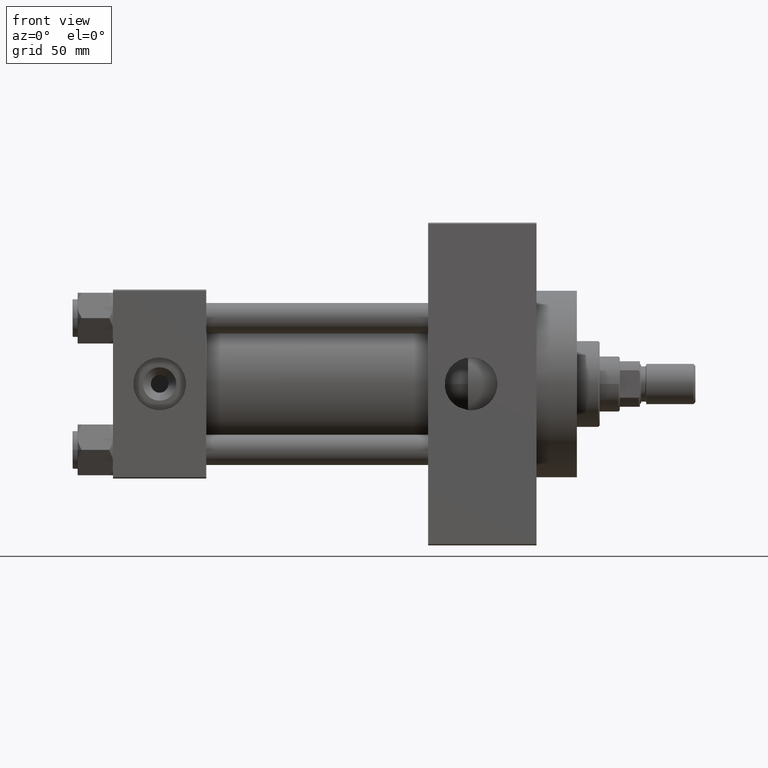
[diagram: clean part render]
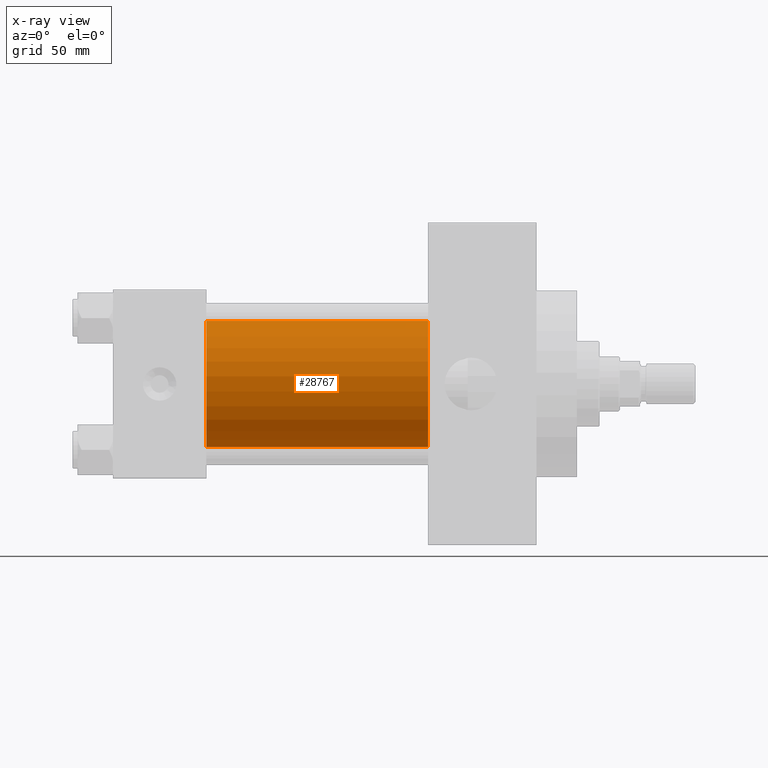
[diagram: x-ray — body ghosted, one internal face saturated and labeled with its STEP entity id]
A machine part, front view, then the same camera in x-ray: the body is ghosted and one INTERNAL B-rep face — a face not visible from any outside direction — is saturated and labeled: STEP entity #28767.
In plain terms, the highlighted cylindrical surface (partial cylindrical patch) has radius 25 mm, axis along (-1, -0, -0).
Its self-contained STEP definition (entity closure, byte-faithful):
#444 = AXIS2_PLACEMENT_3D ( 'NONE', #13456, #1597, #5875 ) ;
#775 = VERTEX_POINT ( 'NONE', #23374 ) ;
#824 = DIRECTION ( 'NONE',  ( -1.000000000000000000, -0.000000000000000000, -0.000000000000000000 ) ) ;
#1597 = DIRECTION ( 'NONE',  ( 1.000000000000000000, 0.000000000000000000, 0.000000000000000000 ) ) ;
#2289 = VECTOR ( 'NONE', #47119, 1000.000000000000000 ) ;
#4102 = CARTESIAN_POINT ( 'NONE',  ( 125.0000000000000000, 4.595317839031724996E-16, -25.00000000000000000 ) ) ;
#4330 = ORIENTED_EDGE ( 'NONE', *, *, #37164, .T. ) ;
#4348 = LINE ( 'NONE', #4102, #42304 ) ;
#5117 = AXIS2_PLACEMENT_3D ( 'NONE', #43704, #9334, #24484 ) ;
#5224 = CARTESIAN_POINT ( 'NONE',  ( 125.0000000000000000, 4.595317839031724996E-16, -25.00000000000000000 ) ) ;
#5875 = DIRECTION ( 'NONE',  ( 0.000000000000000000, 0.000000000000000000, -1.000000000000000000 ) ) ;
#6088 = ORIENTED_EDGE ( 'NONE', *, *, #48730, .F. ) ;
#7903 = VERTEX_POINT ( 'NONE', #40362 ) ;
#9334 = DIRECTION ( 'NONE',  ( 1.000000000000000000, 0.000000000000000000, 0.000000000000000000 ) ) ;
#13456 = CARTESIAN_POINT ( 'NONE',  ( 125.0000000000000000, -2.602085213965210642E-15, 0.000000000000000000 ) ) ;
#15656 = DIRECTION ( 'NONE',  ( -1.000000000000000000, -0.000000000000000000, -0.000000000000000000 ) ) ;
#18186 = CIRCLE ( 'NONE', #444, 25.00000000000000000 ) ;
#19052 = ORIENTED_EDGE ( 'NONE', *, *, #48229, .T. ) ;
#20375 = EDGE_CURVE ( 'NONE', #28306, #775, #32177, .T. ) ;
#23374 = CARTESIAN_POINT ( 'NONE',  ( 37.00000000000000000, -2.602085213965210642E-15, 25.00000000000000000 ) ) ;
#23642 = CIRCLE ( 'NONE', #5117, 25.00000000000000000 ) ;
#23802 = ORIENTED_EDGE ( 'NONE', *, *, #20375, .F. ) ;
#24004 = DIRECTION ( 'NONE',  ( 0.000000000000000000, 0.000000000000000000, 1.000000000000000000 ) ) ;
#24484 = DIRECTION ( 'NONE',  ( 0.000000000000000000, 0.000000000000000000, -1.000000000000000000 ) ) ;
#27115 = CARTESIAN_POINT ( 'NONE',  ( 125.0000000000000000, -2.602085213965210642E-15, 25.00000000000000000 ) ) ;
#28306 = VERTEX_POINT ( 'NONE', #27115 ) ;
#28767 = ADVANCED_FACE ( 'NONE', ( #43222 ), #35373, .F. ) ;
#32177 = LINE ( 'NONE', #47616, #2289 ) ;
#35373 = CYLINDRICAL_SURFACE ( 'NONE', #47610, 25.00000000000000000 ) ;
#37164 = EDGE_CURVE ( 'NONE', #28306, #39550, #18186, .T. ) ;
#39550 = VERTEX_POINT ( 'NONE', #5224 ) ;
#40362 = CARTESIAN_POINT ( 'NONE',  ( 37.00000000000000000, 4.595317839031724996E-16, -25.00000000000000000 ) ) ;
#42304 = VECTOR ( 'NONE', #824, 1000.000000000000000 ) ;
#43222 = FACE_OUTER_BOUND ( 'NONE', #48831, .T. ) ;
#43704 = CARTESIAN_POINT ( 'NONE',  ( 37.00000000000000000, -2.602085213965210642E-15, 0.000000000000000000 ) ) ;
#47119 = DIRECTION ( 'NONE',  ( -1.000000000000000000, -0.000000000000000000, -0.000000000000000000 ) ) ;
#47269 = CARTESIAN_POINT ( 'NONE',  ( 125.0000000000000000, -2.602085213965210642E-15, 0.000000000000000000 ) ) ;
#47610 = AXIS2_PLACEMENT_3D ( 'NONE', #47269, #15656, #24004 ) ;
#47616 = CARTESIAN_POINT ( 'NONE',  ( 125.0000000000000000, -2.602085213965210642E-15, 25.00000000000000000 ) ) ;
#48229 = EDGE_CURVE ( 'NONE', #39550, #7903, #4348, .T. ) ;
#48730 = EDGE_CURVE ( 'NONE', #775, #7903, #23642, .T. ) ;
#48831 = EDGE_LOOP ( 'NONE', ( #4330, #19052, #6088, #23802 ) ) ;